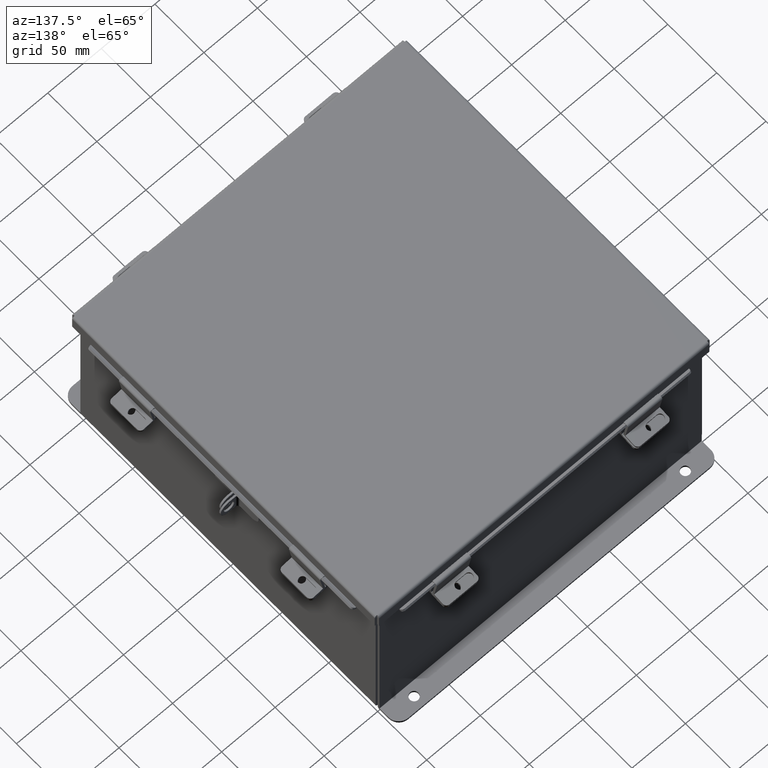
[diagram: clean part render]
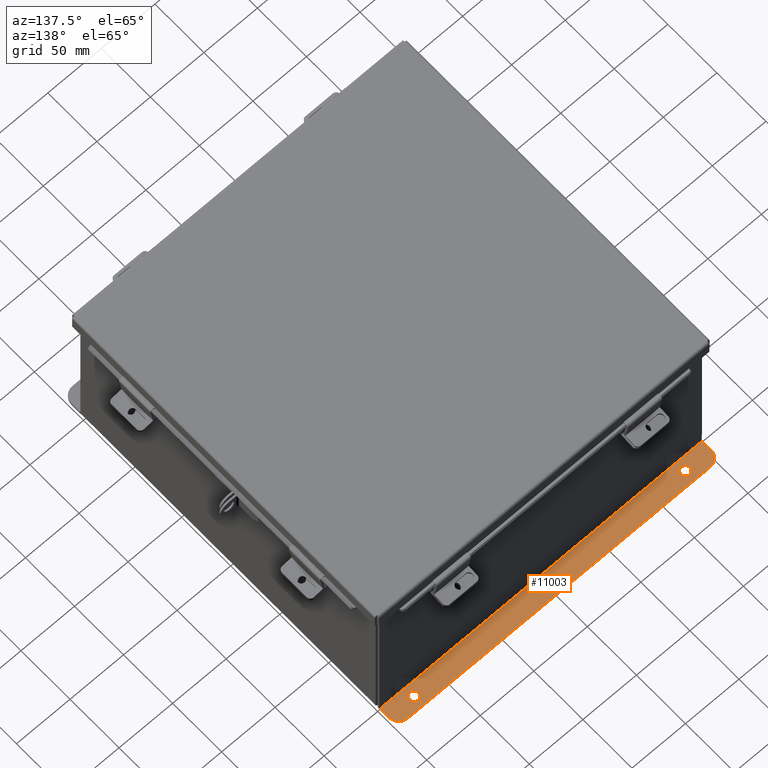
[diagram: same view with one face highlighted and labeled with its STEP entity id]
A machine part, auxiliary view. The second image highlights one B-rep face of the part: STEP entity #11003.
In plain terms, the highlighted planar face has unit normal (0, 0, 1).
Its self-contained STEP definition (entity closure, byte-faithful):
#227 = CARTESIAN_POINT ( 'NONE',  ( 5.925299999999999100, 0.01300000000000010700, -3.112299999999999800 ) ) ;
#466 = EDGE_LOOP ( 'NONE', ( #9636, #5790 ) ) ;
#613 = DIRECTION ( 'NONE',  ( 0.0000000000000000000, 3.702694488566362300E-015, 1.000000000000000000 ) ) ;
#639 = CARTESIAN_POINT ( 'NONE',  ( 5.925299999999999100, 0.7378000000000000100, -3.112300000000003000 ) ) ;
#975 = ORIENTED_EDGE ( 'NONE', *, *, #5166, .T. ) ;
#1328 = DIRECTION ( 'NONE',  ( 0.0000000000000000000, 3.702694488566362300E-015, 1.000000000000000000 ) ) ;
#1339 = CIRCLE ( 'NONE', #12790, 0.1560000000000001700 ) ;
#1407 = VERTEX_POINT ( 'NONE', #4675 ) ;
#1604 = ORIENTED_EDGE ( 'NONE', *, *, #14828, .F. ) ;
#1947 = AXIS2_PLACEMENT_3D ( 'NONE', #15028, #1328, #10926 ) ;
#2014 = DIRECTION ( 'NONE',  ( -0.0000000000000000000, -1.000000000000000000, 3.702694488566362300E-015 ) ) ;
#2109 = ORIENTED_EDGE ( 'NONE', *, *, #7916, .T. ) ;
#2222 = VECTOR ( 'NONE', #4026, 39.37007874015748100 ) ;
#2331 = CARTESIAN_POINT ( 'NONE',  ( 4.987799999999998200, 0.3627999999999997300, -3.112300000000001200 ) ) ;
#2385 = CARTESIAN_POINT ( 'NONE',  ( -4.987800000000000900, 0.3627999999999997300, -3.112300000000001200 ) ) ;
#2662 = ORIENTED_EDGE ( 'NONE', *, *, #4515, .T. ) ;
#3067 = CIRCLE ( 'NONE', #14061, 0.1560000000000001700 ) ;
#3225 = DIRECTION ( 'NONE',  ( -0.0000000000000000000, -3.702694488566362300E-015, -1.000000000000000000 ) ) ;
#3386 = CARTESIAN_POINT ( 'NONE',  ( 5.550299999999999100, 0.7378000000000000100, -3.112300000000003000 ) ) ;
#3504 = VERTEX_POINT ( 'NONE', #11587 ) ;
#3770 = DIRECTION ( 'NONE',  ( 0.0000000000000000000, -1.000000000000000000, 3.502369222646487400E-015 ) ) ;
#3930 = ORIENTED_EDGE ( 'NONE', *, *, #12835, .T. ) ;
#4026 = DIRECTION ( 'NONE',  ( -0.0000000000000000000, 1.000000000000000000, -3.702694488566362300E-015 ) ) ;
#4124 = CARTESIAN_POINT ( 'NONE',  ( -4.987800000000000900, 0.2067999999999996000, -3.112300000000000700 ) ) ;
#4515 = EDGE_CURVE ( 'NONE', #1407, #9803, #8817, .T. ) ;
#4675 = CARTESIAN_POINT ( 'NONE',  ( 4.987799999999998200, 0.5187999999999999300, -3.112300000000001600 ) ) ;
#4678 = DIRECTION ( 'NONE',  ( 0.0000000000000000000, -1.000000000000000000, 3.502369222646487400E-015 ) ) ;
#4766 = EDGE_CURVE ( 'NONE', #3504, #14784, #8579, .T. ) ;
#4847 = EDGE_LOOP ( 'NONE', ( #2662, #3930 ) ) ;
#4953 = VECTOR ( 'NONE', #13380, 39.37007874015748100 ) ;
#5166 = EDGE_CURVE ( 'NONE', #14167, #17770, #11181, .T. ) ;
#5193 = AXIS2_PLACEMENT_3D ( 'NONE', #2385, #12003, #3770 ) ;
#5790 = ORIENTED_EDGE ( 'NONE', *, *, #17539, .T. ) ;
#5983 = ORIENTED_EDGE ( 'NONE', *, *, #4766, .F. ) ;
#6318 = DIRECTION ( 'NONE',  ( -0.0000000000000000000, -3.702694488566362300E-015, -1.000000000000000000 ) ) ;
#7354 = CARTESIAN_POINT ( 'NONE',  ( -5.925300000000000000, 0.01300000000000010700, -3.112299999999999800 ) ) ;
#7680 = EDGE_CURVE ( 'NONE', #14784, #17770, #12767, .T. ) ;
#7916 = EDGE_CURVE ( 'NONE', #8424, #12064, #9729, .T. ) ;
#8262 = AXIS2_PLACEMENT_3D ( 'NONE', #8819, #613, #10223 ) ;
#8424 = VERTEX_POINT ( 'NONE', #12158 ) ;
#8579 = LINE ( 'NONE', #227, #4953 ) ;
#8756 = EDGE_CURVE ( 'NONE', #16949, #11037, #1339, .T. ) ;
#8817 = CIRCLE ( 'NONE', #16291, 0.1560000000000001700 ) ;
#8819 = CARTESIAN_POINT ( 'NONE',  ( 5.550299999999999100, 0.3627999999999997300, -3.112300000000001200 ) ) ;
#8977 = DIRECTION ( 'NONE',  ( 0.0000000000000000000, -1.000000000000000000, 4.370956789862820400E-015 ) ) ;
#9271 = LINE ( 'NONE', #639, #10152 ) ;
#9326 = CARTESIAN_POINT ( 'NONE',  ( 4.987799999999998200, 0.2067999999999996000, -3.112300000000000700 ) ) ;
#9544 = PLANE ( 'NONE',  #1947 ) ;
#9636 = ORIENTED_EDGE ( 'NONE', *, *, #8756, .T. ) ;
#9729 = CIRCLE ( 'NONE', #8262, 0.3750000000000000600 ) ;
#9803 = VERTEX_POINT ( 'NONE', #9326 ) ;
#10152 = VECTOR ( 'NONE', #10246, 39.37007874015748100 ) ;
#10223 = DIRECTION ( 'NONE',  ( 0.0000000000000000000, -1.000000000000000000, 4.370956789862820400E-015 ) ) ;
#10246 = DIRECTION ( 'NONE',  ( 1.000000000000000000, -0.0000000000000000000, -0.0000000000000000000 ) ) ;
#10396 = CARTESIAN_POINT ( 'NONE',  ( -5.550299999999999100, 0.7378000000000000100, -3.112300000000003000 ) ) ;
#10926 = DIRECTION ( 'NONE',  ( 0.0000000000000000000, -1.000000000000000000, 3.702694488566362300E-015 ) ) ;
#11003 = ADVANCED_FACE ( 'NONE', ( #15200, #15641, #11953 ), #9544, .T. ) ;
#11037 = VERTEX_POINT ( 'NONE', #4124 ) ;
#11055 = CARTESIAN_POINT ( 'NONE',  ( -5.925300000000001800, 0.3628000000000008400, -3.112300000000001200 ) ) ;
#11181 = CIRCLE ( 'NONE', #14292, 0.3750000000000000600 ) ;
#11485 = CARTESIAN_POINT ( 'NONE',  ( -4.987800000000000900, 0.3627999999999997300, -3.112300000000001200 ) ) ;
#11587 = CARTESIAN_POINT ( 'NONE',  ( 5.925299999999999100, 0.01300000000000010700, -3.112299999999999800 ) ) ;
#11632 = CARTESIAN_POINT ( 'NONE',  ( 5.925299999999999100, 0.0000000000000000000, -3.112299999999999800 ) ) ;
#11953 = FACE_OUTER_BOUND ( 'NONE', #12939, .T. ) ;
#11991 = DIRECTION ( 'NONE',  ( 0.0000000000000000000, 3.702694488566362300E-015, 1.000000000000000000 ) ) ;
#12003 = DIRECTION ( 'NONE',  ( -0.0000000000000000000, -3.702694488566362300E-015, -1.000000000000000000 ) ) ;
#12064 = VERTEX_POINT ( 'NONE', #3386 ) ;
#12158 = CARTESIAN_POINT ( 'NONE',  ( 5.925299999999999100, 0.3627999999999997300, -3.112300000000001200 ) ) ;
#12630 = ORIENTED_EDGE ( 'NONE', *, *, #7680, .F. ) ;
#12767 = LINE ( 'NONE', #15047, #2222 ) ;
#12790 = AXIS2_PLACEMENT_3D ( 'NONE', #11485, #3225, #12860 ) ;
#12835 = EDGE_CURVE ( 'NONE', #9803, #1407, #3067, .T. ) ;
#12860 = DIRECTION ( 'NONE',  ( 0.0000000000000000000, -1.000000000000000000, 3.502369222646487400E-015 ) ) ;
#12875 = CIRCLE ( 'NONE', #5193, 0.1560000000000001700 ) ;
#12939 = EDGE_LOOP ( 'NONE', ( #16017, #2109, #1604, #975, #12630, #5983 ) ) ;
#13380 = DIRECTION ( 'NONE',  ( -1.000000000000000000, 0.0000000000000000000, 0.0000000000000000000 ) ) ;
#14061 = AXIS2_PLACEMENT_3D ( 'NONE', #14561, #6318, #15985 ) ;
#14142 = VECTOR ( 'NONE', #2014, 39.37007874015748100 ) ;
#14167 = VERTEX_POINT ( 'NONE', #10396 ) ;
#14292 = AXIS2_PLACEMENT_3D ( 'NONE', #17579, #11991, #8977 ) ;
#14539 = DIRECTION ( 'NONE',  ( -0.0000000000000000000, -3.702694488566362300E-015, -1.000000000000000000 ) ) ;
#14561 = CARTESIAN_POINT ( 'NONE',  ( 4.987799999999998200, 0.3627999999999997300, -3.112300000000001200 ) ) ;
#14595 = LINE ( 'NONE', #11632, #14142 ) ;
#14784 = VERTEX_POINT ( 'NONE', #7354 ) ;
#14828 = EDGE_CURVE ( 'NONE', #14167, #12064, #9271, .T. ) ;
#15028 = CARTESIAN_POINT ( 'NONE',  ( 0.0000000000000000000, -1.092739197465705300E-014, -3.112299999999999800 ) ) ;
#15047 = CARTESIAN_POINT ( 'NONE',  ( -5.925300000000001800, 0.7378000000000000100, -3.112300000000003000 ) ) ;
#15200 = FACE_BOUND ( 'NONE', #466, .T. ) ;
#15641 = FACE_BOUND ( 'NONE', #4847, .T. ) ;
#15985 = DIRECTION ( 'NONE',  ( 0.0000000000000000000, -1.000000000000000000, 3.502369222646487400E-015 ) ) ;
#16017 = ORIENTED_EDGE ( 'NONE', *, *, #17390, .F. ) ;
#16291 = AXIS2_PLACEMENT_3D ( 'NONE', #2331, #14539, #4678 ) ;
#16949 = VERTEX_POINT ( 'NONE', #17681 ) ;
#17390 = EDGE_CURVE ( 'NONE', #8424, #3504, #14595, .T. ) ;
#17539 = EDGE_CURVE ( 'NONE', #11037, #16949, #12875, .T. ) ;
#17579 = CARTESIAN_POINT ( 'NONE',  ( -5.550299999999999100, 0.3628000000000008400, -3.112300000000001200 ) ) ;
#17681 = CARTESIAN_POINT ( 'NONE',  ( -4.987800000000000900, 0.5187999999999999300, -3.112300000000001600 ) ) ;
#17770 = VERTEX_POINT ( 'NONE', #11055 ) ;